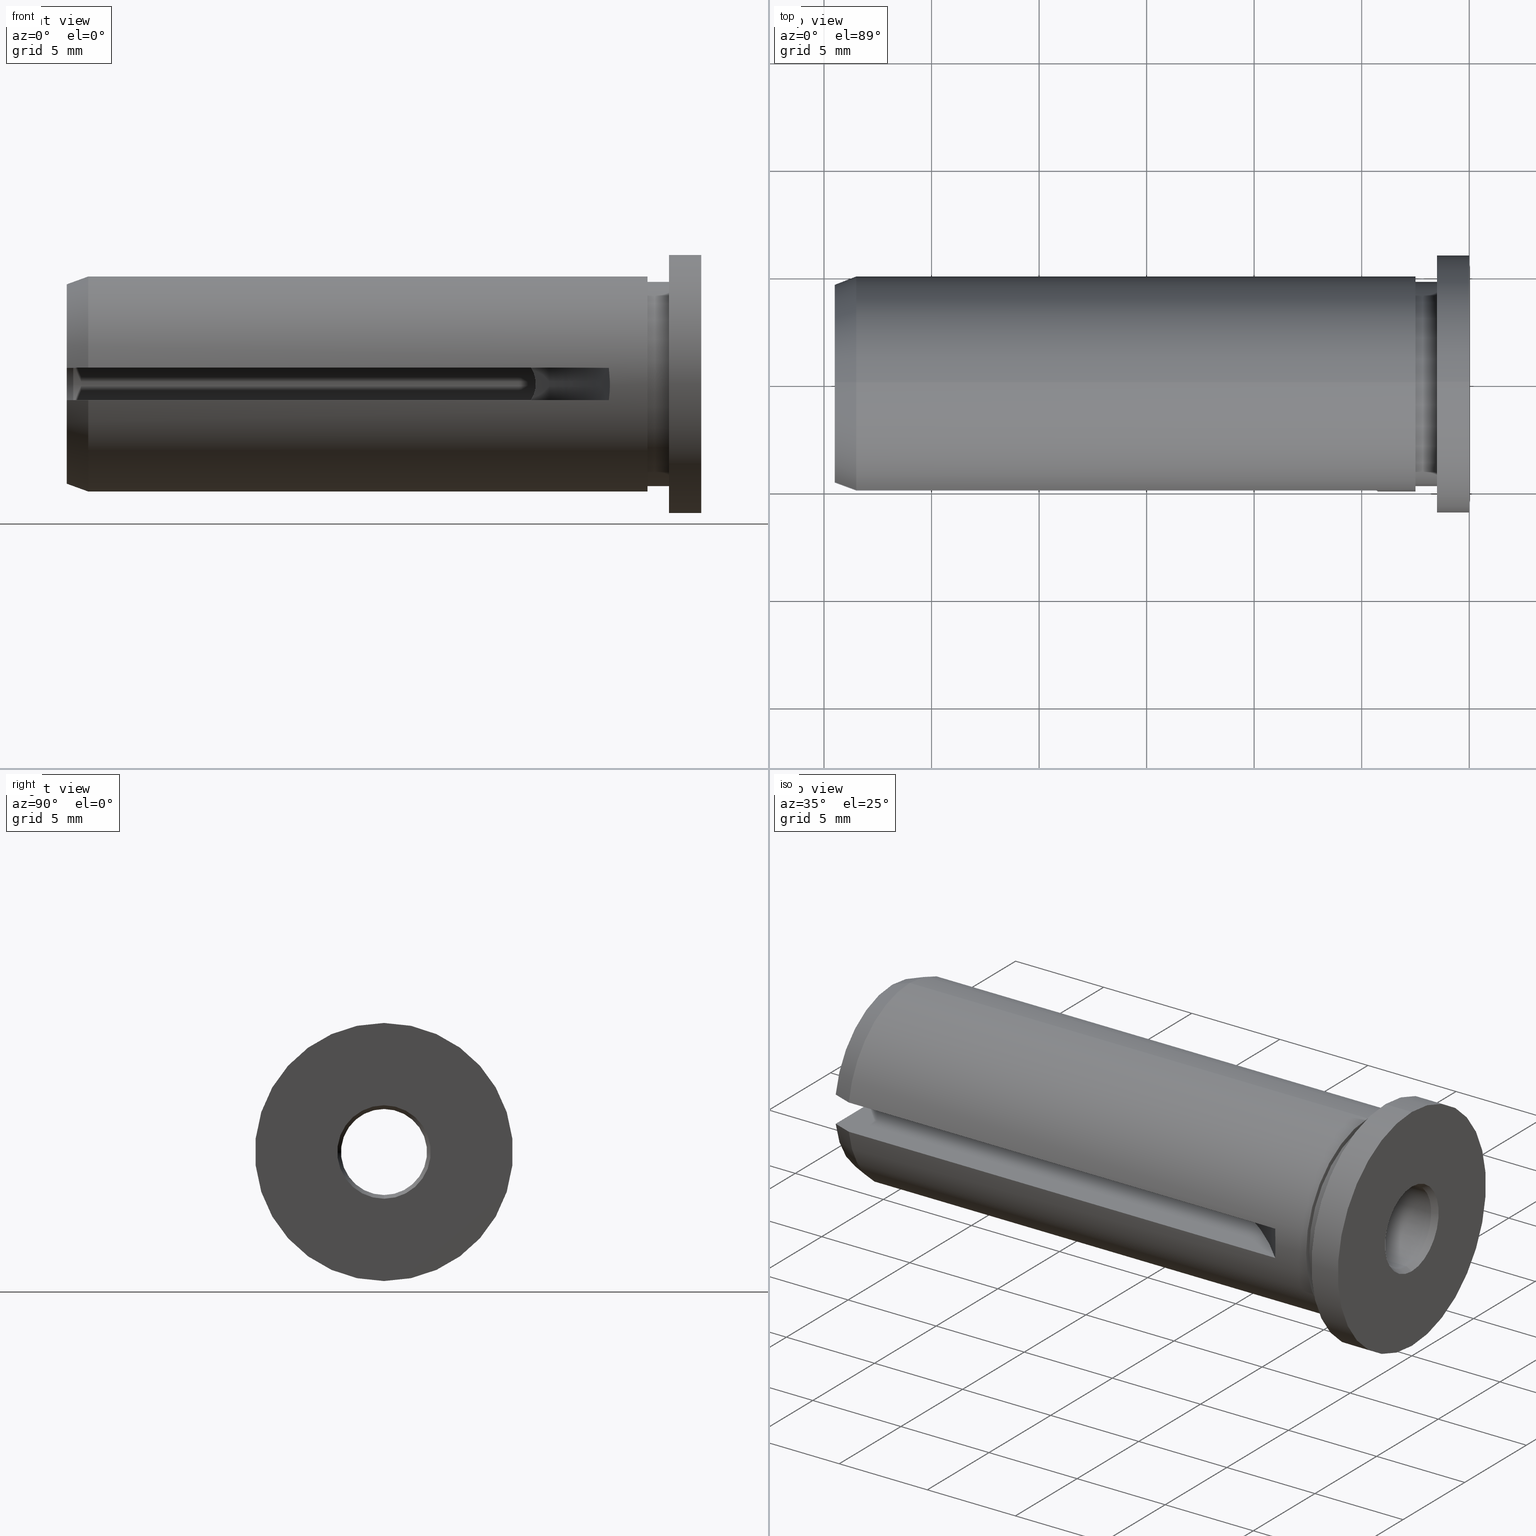
[diagram: canonical four-view strip — front | top / right | iso, engineering-drawing reading convention]
A machine part, canonical four-view strip (front | top / right | iso — engineering-drawing reading convention). The complete STEP part file that produces these views, byte-faithful:
ISO-10303-21;
HEADER;
FILE_DESCRIPTION (( 'STEP AP203' ),
    '1' );
FILE_NAME ('265.010.004.STEP',
    '2018-02-20T14:48:31',
    ( 'SWIAdmin' ),
    ( 'Hewlett-Packard Company' ),
    'SwSTEP 2.0',
    'SolidWorks 2017',
    '' );
FILE_SCHEMA (( 'CONFIG_CONTROL_DESIGN' ));
ENDSEC;

DATA;
#1 = ORIENTED_EDGE ( 'NONE', *, *, #425, .F. ) ;
#2 = CARTESIAN_POINT ( 'NONE',  ( -2.499999999999998700, 6.123233995736767300E-016, -5.000000000000000900 ) ) ;
#3 = ORIENTED_EDGE ( 'NONE', *, *, #92, .F. ) ;
#4 = CARTESIAN_POINT ( 'NONE',  ( -29.50000000000000400, 2.661408646039690100E-016, -2.173205080756889500 ) ) ;
#5 = DIRECTION ( 'NONE',  ( -1.000000000000000000, 0.0000000000000000000, -0.0000000000000000000 ) ) ;
#6 = DIRECTION ( 'NONE',  ( 0.0000000000000000000, 0.0000000000000000000, 1.000000000000000000 ) ) ;
#7 = CARTESIAN_POINT ( 'NONE',  ( -4.260835336181543200, -4.981137054215166900, -0.5014636468800564000 ) ) ;
#8 = CARTESIAN_POINT ( 'NONE',  ( -7.913416396128379700, -1.854049621773917100, 0.7500000000000000000 ) ) ;
#9 = DIRECTION ( 'NONE',  ( -1.000000000000000000, -0.0000000000000000000, -0.0000000000000000000 ) ) ;
#10 = CYLINDRICAL_SURFACE ( 'NONE', #131, 2.000000000000000000 ) ;
#11 = DIRECTION ( 'NONE',  ( -1.000000000000000000, -0.0000000000000000000, -0.0000000000000000000 ) ) ;
#12 = ORIENTED_EDGE ( 'NONE', *, *, #647, .T. ) ;
#13 = EDGE_CURVE ( 'NONE', #56, #552, #656, .T. ) ;
#14 = CARTESIAN_POINT ( 'NONE',  ( -28.50000000000000000, 0.0000000000000000000, 0.0000000000000000000 ) ) ;
#15 = DIRECTION ( 'NONE',  ( -1.000000000000000000, 0.0000000000000000000, 0.0000000000000000000 ) ) ;
#16 = PLANE ( 'NONE',  #763 ) ;
#17 = CARTESIAN_POINT ( 'NONE',  ( -28.50000000000000000, 0.0000000000000000000, 0.0000000000000000000 ) ) ;
#18 = CARTESIAN_POINT ( 'NONE',  ( -7.697445877389423400, -1.999931202562466300, -0.1361388579924962800 ) ) ;
#19 = EDGE_LOOP ( 'NONE', ( #584, #32, #466, #226 ) ) ;
#20 = EDGE_CURVE ( 'NONE', #56, #156, #599, .T. ) ;
#21 = ORIENTED_EDGE ( 'NONE', *, *, #149, .T. ) ;
#22 = LINE ( 'NONE', #422, #369 ) ;
#23 = CIRCLE ( 'NONE', #197, 20.00000000000000400 ) ;
#24 = DIRECTION ( 'NONE',  ( -1.000000000000000000, -0.0000000000000000000, -0.0000000000000000000 ) ) ;
#25 = VECTOR ( 'NONE', #577, 1000.000000000000000 ) ;
#26 = PERSON_AND_ORGANIZATION ( #576, #38 ) ;
#27 = CARTESIAN_POINT ( 'NONE',  ( -28.50000000000000000, 6.123233995736762300E-016, 4.999999999999996400 ) ) ;
#28 = ORIENTED_EDGE ( 'NONE', *, *, #164, .T. ) ;
#29 = CARTESIAN_POINT ( 'NONE',  ( -33.37338553259883200, 0.0000000000000000000, 0.0000000000000000000 ) ) ;
#30 = FACE_OUTER_BOUND ( 'NONE', #228, .T. ) ;
#31 = DIRECTION ( 'NONE',  ( -1.000000000000000000, -0.0000000000000000000, -0.0000000000000000000 ) ) ;
#32 = ORIENTED_EDGE ( 'NONE', *, *, #247, .T. ) ;
#33 = ADVANCED_FACE ( 'NONE', ( #761 ), #545, .T. ) ;
#34 = EDGE_CURVE ( 'NONE', #653, #513, #280, .T. ) ;
#35 = DIRECTION ( 'NONE',  ( 0.0000000000000000000, 0.0000000000000000000, -1.000000000000000000 ) ) ;
#36 = ORIENTED_EDGE ( 'NONE', *, *, #540, .F. ) ;
#37 = CARTESIAN_POINT ( 'NONE',  ( -29.19999999999999900, 0.0000000000000000000, 2.000000000000000000 ) ) ;
#38 = ORGANIZATION ( 'UNSPECIFIED', 'UNSPECIFIED', '' ) ;
#39 = VECTOR ( 'NONE', #382, 1000.000000000000000 ) ;
#40 = VERTEX_POINT ( 'NONE', #711 ) ;
#41 = CARTESIAN_POINT ( 'NONE',  ( -33.37338553259883200, 0.0000000000000000000, 6.000000000000000000 ) ) ;
#42 = CYLINDRICAL_SURFACE ( 'NONE', #549, 6.000000000000000000 ) ;
#43 = AXIS2_PLACEMENT_3D ( 'NONE', #698, #11, #529 ) ;
#44 = LINE ( 'NONE', #433, #630 ) ;
#45 = DIRECTION ( 'NONE',  ( 0.0000000000000000000, 0.0000000000000000000, 1.000000000000000000 ) ) ;
#46 = ORIENTED_EDGE ( 'NONE', *, *, #194, .F. ) ;
#47 = VERTEX_POINT ( 'NONE', #732 ) ;
#48 = LINE ( 'NONE', #644, #208 ) ;
#49 = EDGE_CURVE ( 'NONE', #655, #583, #134, .T. ) ;
#50 =( NAMED_UNIT ( * ) SI_UNIT ( $, .STERADIAN. ) SOLID_ANGLE_UNIT ( ) );
#51 = COORDINATED_UNIVERSAL_TIME_OFFSET ( 1, 0, .AHEAD. ) ;
#52 = CARTESIAN_POINT ( 'NONE',  ( -0.3000000000000016500, 2.555351122167198000E-016, 2.000000000000000000 ) ) ;
#53 = CARTESIAN_POINT ( 'NONE',  ( 0.0000000000000000000, 2.661408646039689100E-016, 2.173205080756889000 ) ) ;
#54 =( LENGTH_UNIT ( ) NAMED_UNIT ( * ) SI_UNIT ( .MILLI., .METRE. ) );
#55 = ORIENTED_EDGE ( 'NONE', *, *, #479, .F. ) ;
#56 = VERTEX_POINT ( 'NONE', #716 ) ;
#57 = CC_DESIGN_DATE_AND_TIME_ASSIGNMENT ( #613, #370, ( #329 ) ) ;
#58 = ADVANCED_FACE ( 'NONE', ( #285, #563 ), #260, .F. ) ;
#59 = CARTESIAN_POINT ( 'NONE',  ( -29.19999999999999900, -1.854049621773916000, -0.7500000000000000000 ) ) ;
#60 = EDGE_CURVE ( 'NONE', #513, #523, #141, .T. ) ;
#61 = DIRECTION ( 'NONE',  ( -1.000000000000000000, -0.0000000000000000000, -0.0000000000000000000 ) ) ;
#62 = CIRCLE ( 'NONE', #756, 5.000000000000000000 ) ;
#63 = ORIENTED_EDGE ( 'NONE', *, *, #243, .T. ) ;
#64 = ORIENTED_EDGE ( 'NONE', *, *, #520, .F. ) ;
#65 = PERSON_AND_ORGANIZATION_ROLE ( 'classification_officer' ) ;
#66 = FACE_OUTER_BOUND ( 'NONE', #338, .T. ) ;
#67 = CIRCLE ( 'NONE', #426, 2.000000000000000000 ) ;
#68 = CARTESIAN_POINT ( 'NONE',  ( -29.50000000000000400, 0.0000000000000000000, 0.0000000000000000000 ) ) ;
#69 = EDGE_CURVE ( 'NONE', #156, #384, #147, .T. ) ;
#70 = CARTESIAN_POINT ( 'NONE',  ( -28.50000000000000000, 0.0000000000000000000, 0.0000000000000000000 ) ) ;
#71 = ORIENTED_EDGE ( 'NONE', *, *, #127, .F. ) ;
#72 = PRODUCT_DEFINITION ( 'UNKNOWN', '', #223, #403 ) ;
#73 = ADVANCED_FACE ( 'NONE', ( #264 ), #400, .F. ) ;
#74 = DIRECTION ( 'NONE',  ( -1.000000000000000000, -0.0000000000000000000, -0.0000000000000000000 ) ) ;
#75 = EDGE_CURVE ( 'NONE', #738, #423, #267, .T. ) ;
#76 = ORIENTED_EDGE ( 'NONE', *, *, #111, .T. ) ;
#77 = DIRECTION ( 'NONE',  ( 0.0000000000000000000, 0.0000000000000000000, 1.000000000000000000 ) ) ;
#78 = CONICAL_SURFACE ( 'NONE', #349, 2.000000000000000000, 0.5235987755982999300 ) ;
#79 = FACE_OUTER_BOUND ( 'NONE', #413, .T. ) ;
#80 = DIRECTION ( 'NONE',  ( -1.000000000000000000, -0.0000000000000000000, -0.0000000000000000000 ) ) ;
#81 = DIRECTION ( 'NONE',  ( 0.0000000000000000000, 0.0000000000000000000, 1.000000000000000000 ) ) ;
#82 = EDGE_CURVE ( 'NONE', #384, #552, #694, .T. ) ;
#83 = ORIENTED_EDGE ( 'NONE', *, *, #145, .F. ) ;
#84 = DIRECTION ( 'NONE',  ( -1.000000000000000000, -0.0000000000000000000, -0.0000000000000000000 ) ) ;
#85 = DIRECTION ( 'NONE',  ( 1.000000000000000000, 0.0000000000000000000, 0.0000000000000000000 ) ) ;
#86 = ORIENTED_EDGE ( 'NONE', *, *, #164, .F. ) ;
#87 = EDGE_LOOP ( 'NONE', ( #295, #183, #580, #440, #172, #63 ) ) ;
#88 = DIRECTION ( 'NONE',  ( -1.000000000000000000, -0.0000000000000000000, -0.0000000000000000000 ) ) ;
#89 = CARTESIAN_POINT ( 'NONE',  ( -28.50000000000000000, 0.0000000000000000000, -4.999999999999996400 ) ) ;
#90 = CARTESIAN_POINT ( 'NONE',  ( -29.50000000000000400, -2.039686329568239900, -0.7500000000000000000 ) ) ;
#91 = CARTESIAN_POINT ( 'NONE',  ( -0.3000000000000016500, 0.0000000000000000000, 0.0000000000000000000 ) ) ;
#92 = EDGE_CURVE ( 'NONE', #511, #462, #745, .T. ) ;
#93 = DIRECTION ( 'NONE',  ( 0.0000000000000000000, 0.0000000000000000000, 1.000000000000000000 ) ) ;
#94 = FACE_OUTER_BOUND ( 'NONE', #342, .T. ) ;
#95 = EDGE_LOOP ( 'NONE', ( #585, #245 ) ) ;
#96 = LOCAL_TIME ( 15, 48, 31.00000000000000000, #605 ) ;
#97 = AXIS2_PLACEMENT_3D ( 'NONE', #158, #307, #616 ) ;
#98 =( NAMED_UNIT ( * ) PLANE_ANGLE_UNIT ( ) SI_UNIT ( $, .RADIAN. ) );
#99 = VECTOR ( 'NONE', #341, 999.9999999999998900 ) ;
#100 = AXIS2_PLACEMENT_3D ( 'NONE', #233, #386, #475 ) ;
#101 = CIRCLE ( 'NONE', #628, 2.000000000000000000 ) ;
#102 = DIRECTION ( 'NONE',  ( -1.000000000000000000, 0.0000000000000000000, 0.0000000000000000000 ) ) ;
#103 = ORIENTED_EDGE ( 'NONE', *, *, #75, .T. ) ;
#104 = DIRECTION ( 'NONE',  ( -1.000000000000000000, -0.0000000000000000000, -0.0000000000000000000 ) ) ;
#105 =( GEOMETRIC_REPRESENTATION_CONTEXT ( 3 ) GLOBAL_UNCERTAINTY_ASSIGNED_CONTEXT ( ( #743 ) ) GLOBAL_UNIT_ASSIGNED_CONTEXT ( ( #54, #98, #50 ) ) REPRESENTATION_CONTEXT ( 'NONE', 'WORKASPACE' ) );
#106 = CARTESIAN_POINT ( 'NONE',  ( -2.499999999999998700, 0.0000000000000000000, 0.0000000000000000000 ) ) ;
#107 = ORIENTED_EDGE ( 'NONE', *, *, #308, .T. ) ;
#108 = APPROVAL_DATE_TIME ( #306, #374 ) ;
#109 = B_SPLINE_CURVE_WITH_KNOTS ( 'NONE', 3,
 ( #313, #354, #367, #535, #18, #139, #679, #331, #646, #148 ),
 .UNSPECIFIED., .F., .F.,
 ( 4, 2, 2, 2, 4 ),
 ( 3.252606517456513300E-019, 0.0004023250316434018600, 0.0008046500632868034900, 0.001206975094930205100, 0.001609300126573607200 ),
 .UNSPECIFIED. ) ;
#110 = CARTESIAN_POINT ( 'NONE',  ( -29.19999999999999900, -1.854049621773916000, 0.7500000000000000000 ) ) ;
#111 = EDGE_CURVE ( 'NONE', #685, #256, #109, .T. ) ;
#112 = DIRECTION ( 'NONE',  ( -1.000000000000000000, -0.0000000000000000000, -0.0000000000000000000 ) ) ;
#113 = EDGE_CURVE ( 'NONE', #437, #592, #290, .T. ) ;
#114 = FACE_OUTER_BOUND ( 'NONE', #87, .T. ) ;
#115 = CARTESIAN_POINT ( 'NONE',  ( -28.50000000000000400, -4.943429983321294700, 0.7500000000000000000 ) ) ;
#116 = ORIENTED_EDGE ( 'NONE', *, *, #127, .T. ) ;
#117 = EDGE_CURVE ( 'NONE', #534, #596, #101, .T. ) ;
#118 = ADVANCED_FACE ( 'NONE', ( #268, #143 ), #399, .F. ) ;
#119 = CARTESIAN_POINT ( 'NONE',  ( 0.0000000000000000000, 0.0000000000000000000, -2.173205080756889000 ) ) ;
#120 = AXIS2_PLACEMENT_3D ( 'NONE', #578, #239, #171 ) ;
#121 = APPROVAL_DATE_TIME ( #754, #741 ) ;
#122 = CARTESIAN_POINT ( 'NONE',  ( -2.499999999999998700, 0.0000000000000000000, 5.000000000000000000 ) ) ;
#123 = FACE_OUTER_BOUND ( 'NONE', #420, .T. ) ;
#124 = PERSON_AND_ORGANIZATION_ROLE ( 'creator' ) ;
#125 = ORIENTED_EDGE ( 'NONE', *, *, #347, .T. ) ;
#126 = ORIENTED_EDGE ( 'NONE', *, *, #69, .T. ) ;
#127 = EDGE_CURVE ( 'NONE', #476, #353, #44, .T. ) ;
#128 = ORIENTED_EDGE ( 'NONE', *, *, #409, .T. ) ;
#129 = EDGE_CURVE ( 'NONE', #252, #211, #270, .T. ) ;
#130 = ORIENTED_EDGE ( 'NONE', *, *, #34, .F. ) ;
#131 = AXIS2_PLACEMENT_3D ( 'NONE', #519, #112, #81 ) ;
#132 = ORIENTED_EDGE ( 'NONE', *, *, #696, .F. ) ;
#133 = ADVANCED_FACE ( 'NONE', ( #543 ), #626, .F. ) ;
#134 = LINE ( 'NONE', #609, #25 ) ;
#135 = CIRCLE ( 'NONE', #546, 6.000000000000000000 ) ;
#136 = DIRECTION ( 'NONE',  ( -0.8660254037844377100, 6.123233995736788200E-017, -0.5000000000000017800 ) ) ;
#137 = EDGE_LOOP ( 'NONE', ( #502, #257, #220, #336, #250, #430, #55, #675 ) ) ;
#138 = AXIS2_PLACEMENT_3D ( 'NONE', #718, #80, #187 ) ;
#139 = CARTESIAN_POINT ( 'NONE',  ( -7.697245762896328900, -2.000068282858012300, 0.1341099084476960500 ) ) ;
#140 = CARTESIAN_POINT ( 'NONE',  ( -29.16670580613720500, -4.697889866643478700, -0.7500000000000000000 ) ) ;
#141 = B_SPLINE_CURVE_WITH_KNOTS ( 'NONE', 3,
 ( #115, #703, #602, #735 ),
 .UNSPECIFIED., .F., .F.,
 ( 4, 4 ),
 ( 0.006348203301518862100, 0.007413927303149411700 ),
 .UNSPECIFIED. ) ;
#142 = DIRECTION ( 'NONE',  ( -1.000000000000000000, -0.0000000000000000000, -0.0000000000000000000 ) ) ;
#143 = FACE_BOUND ( 'NONE', #95, .T. ) ;
#144 = DIRECTION ( 'NONE',  ( -1.000000000000000000, -0.0000000000000000000, -0.0000000000000000000 ) ) ;
#145 = EDGE_CURVE ( 'NONE', #591, #655, #464, .T. ) ;
#146 = ORIENTED_EDGE ( 'NONE', *, *, #687, .F. ) ;
#147 = LINE ( 'NONE', #154, #753 ) ;
#148 = CARTESIAN_POINT ( 'NONE',  ( -7.913416396128379700, -1.854049621773917100, 0.7500000000000000000 ) ) ;
#149 = EDGE_CURVE ( 'NONE', #211, #252, #651, .T. ) ;
#150 = CARTESIAN_POINT ( 'NONE',  ( -4.243564535185438300, -5.000088430392205300, -0.2485253730203543200 ) ) ;
#151 = SECURITY_CLASSIFICATION_LEVEL ( 'unclassified' ) ;
#152 = EDGE_CURVE ( 'NONE', #523, #166, #748, .T. ) ;
#153 = CARTESIAN_POINT ( 'NONE',  ( 0.0000000000000000000, 0.0000000000000000000, 0.0000000000000000000 ) ) ;
#154 = CARTESIAN_POINT ( 'NONE',  ( -0.3000000000000016500, 2.449293598294706400E-016, 2.000000000000000000 ) ) ;
#155 = EDGE_CURVE ( 'NONE', #607, #40, #375, .T. ) ;
#156 = VERTEX_POINT ( 'NONE', #52 ) ;
#157 = MECHANICAL_CONTEXT ( 'NONE', #281, 'mechanical' ) ;
#158 = CARTESIAN_POINT ( 'NONE',  ( -19.00000000000000400, -18.50000000000000000, -0.7500000000000000000 ) ) ;
#159 = LINE ( 'NONE', #176, #431 ) ;
#160 = CARTESIAN_POINT ( 'NONE',  ( -28.50000000000000400, -4.943429983321294700, -0.7500000000000000000 ) ) ;
#161 = ORIENTED_EDGE ( 'NONE', *, *, #149, .F. ) ;
#162 = EDGE_LOOP ( 'NONE', ( #190, #617 ) ) ;
#163 = CYLINDRICAL_SURFACE ( 'NONE', #216, 20.00000000000000400 ) ;
#164 = EDGE_CURVE ( 'NONE', #591, #688, #427, .T. ) ;
#165 = EDGE_LOOP ( 'NONE', ( #728, #469, #641, #230 ) ) ;
#166 = VERTEX_POINT ( 'NONE', #269 ) ;
#167 = CARTESIAN_POINT ( 'NONE',  ( -29.50000000000000400, 0.0000000000000000000, 0.0000000000000000000 ) ) ;
#168 = CARTESIAN_POINT ( 'NONE',  ( -1.500000000000001300, 0.0000000000000000000, 0.0000000000000000000 ) ) ;
#169 = EDGE_CURVE ( 'NONE', #423, #583, #229, .T. ) ;
#170 = AXIS2_PLACEMENT_3D ( 'NONE', #219, #177, #357 ) ;
#171 = DIRECTION ( 'NONE',  ( 0.0000000000000000000, 0.0000000000000000000, 1.000000000000000000 ) ) ;
#172 = ORIENTED_EDGE ( 'NONE', *, *, #275, .T. ) ;
#173 = DIRECTION ( 'NONE',  ( 0.0000000000000000000, 0.0000000000000000000, 1.000000000000000000 ) ) ;
#174 = EDGE_CURVE ( 'NONE', #166, #510, #410, .T. ) ;
#175 = ORIENTED_EDGE ( 'NONE', *, *, #247, .F. ) ;
#176 = CARTESIAN_POINT ( 'NONE',  ( -33.37338553259883200, -1.854049621773915700, 0.7500000000000000000 ) ) ;
#177 = DIRECTION ( 'NONE',  ( -1.000000000000000000, -0.0000000000000000000, -0.0000000000000000000 ) ) ;
#178 = AXIS2_PLACEMENT_3D ( 'NONE', #733, #618, #102 ) ;
#179 = CARTESIAN_POINT ( 'NONE',  ( -33.37338553259883200, -1.854049621773915700, -0.7500000000000000000 ) ) ;
#180 = ORIENTED_EDGE ( 'NONE', *, *, #347, .F. ) ;
#181 = VERTEX_POINT ( 'NONE', #627 ) ;
#182 = CARTESIAN_POINT ( 'NONE',  ( -29.19999999999999900, 0.0000000000000000000, 0.0000000000000000000 ) ) ;
#183 = ORIENTED_EDGE ( 'NONE', *, *, #647, .F. ) ;
#184 = DIRECTION ( 'NONE',  ( 0.0000000000000000000, 0.0000000000000000000, 1.000000000000000000 ) ) ;
#185 = DIRECTION ( 'NONE',  ( -1.000000000000000000, -0.0000000000000000000, -0.0000000000000000000 ) ) ;
#186 = DIRECTION ( 'NONE',  ( 0.0000000000000000000, 0.0000000000000000000, 1.000000000000000000 ) ) ;
#187 = DIRECTION ( 'NONE',  ( 0.0000000000000000000, 0.0000000000000000000, 1.000000000000000000 ) ) ;
#188 = CARTESIAN_POINT ( 'NONE',  ( -2.499999999999998700, 5.817072295949927400E-016, -4.750000000000000000 ) ) ;
#189 = AXIS2_PLACEMENT_3D ( 'NONE', #497, #225, #6 ) ;
#190 = ORIENTED_EDGE ( 'NONE', *, *, #194, .T. ) ;
#191 = APPROVAL_STATUS ( 'not_yet_approved' ) ;
#192 = LINE ( 'NONE', #566, #615 ) ;
#193 = ORIENTED_EDGE ( 'NONE', *, *, #480, .F. ) ;
#194 = EDGE_CURVE ( 'NONE', #592, #437, #356, .T. ) ;
#195 = AXIS2_PLACEMENT_3D ( 'NONE', #29, #629, #222 ) ;
#196 = AXIS2_PLACEMENT_3D ( 'NONE', #714, #631, #606 ) ;
#197 = AXIS2_PLACEMENT_3D ( 'NONE', #457, #184, #215 ) ;
#198 = CONICAL_SURFACE ( 'NONE', #676, 4.999999999999996400, 0.3490658503988667300 ) ;
#199 = LINE ( 'NONE', #332, #729 ) ;
#200 = VECTOR ( 'NONE', #526, 1000.000000000000000 ) ;
#201 = ORIENTED_EDGE ( 'NONE', *, *, #113, .F. ) ;
#202 = CARTESIAN_POINT ( 'NONE',  ( -29.50000000000000400, -4.574961419375001400, 0.7500000000000000000 ) ) ;
#203 = CARTESIAN_POINT ( 'NONE',  ( 0.0000000000000000000, 0.0000000000000000000, 6.000000000000000000 ) ) ;
#204 = EDGE_CURVE ( 'NONE', #156, #56, #512, .T. ) ;
#205 = FACE_OUTER_BOUND ( 'NONE', #569, .T. ) ;
#206 = DIRECTION ( 'NONE',  ( 1.000000000000000000, 0.0000000000000000000, 0.0000000000000000000 ) ) ;
#207 = CYLINDRICAL_SURFACE ( 'NONE', #453, 6.000000000000000000 ) ;
#208 = VECTOR ( 'NONE', #304, 1000.000000000000000 ) ;
#209 = CARTESIAN_POINT ( 'NONE',  ( -4.295598979118936200, -4.943429983321294700, -0.7500000000000000000 ) ) ;
#210 = ORIENTED_EDGE ( 'NONE', *, *, #13, .F. ) ;
#211 = VERTEX_POINT ( 'NONE', #361 ) ;
#212 = DIRECTION ( 'NONE',  ( 1.000000000000000000, 0.0000000000000000000, 0.0000000000000000000 ) ) ;
#213 = AXIS2_PLACEMENT_3D ( 'NONE', #273, #303, #278 ) ;
#214 = CARTESIAN_POINT ( 'NONE',  ( -29.50000000000000400, 0.0000000000000000000, 0.0000000000000000000 ) ) ;
#215 = DIRECTION ( 'NONE',  ( -1.000000000000000000, 0.0000000000000000000, 0.0000000000000000000 ) ) ;
#216 = AXIS2_PLACEMENT_3D ( 'NONE', #297, #287, #314 ) ;
#217 = ORIENTED_EDGE ( 'NONE', *, *, #20, .F. ) ;
#218 = CONICAL_SURFACE ( 'NONE', #189, 2.173205080756889500, 0.5235987755983009300 ) ;
#219 = CARTESIAN_POINT ( 'NONE',  ( -33.37338553259883200, 0.0000000000000000000, 0.0000000000000000000 ) ) ;
#220 = ORIENTED_EDGE ( 'NONE', *, *, #145, .T. ) ;
#221 = ORIENTED_EDGE ( 'NONE', *, *, #308, .F. ) ;
#222 = DIRECTION ( 'NONE',  ( 0.0000000000000000000, 0.0000000000000000000, 1.000000000000000000 ) ) ;
#223 = PRODUCT_DEFINITION_FORMATION_WITH_SPECIFIED_SOURCE ( 'ANY', '', #417, .NOT_KNOWN. ) ;
#224 = CARTESIAN_POINT ( 'NONE',  ( -1.500000000000000000, 6.000000000000000000, 0.0000000000000000000 ) ) ;
#225 = DIRECTION ( 'NONE',  ( -1.000000000000000000, -0.0000000000000000000, -0.0000000000000000000 ) ) ;
#226 = ORIENTED_EDGE ( 'NONE', *, *, #517, .T. ) ;
#227 = EDGE_LOOP ( 'NONE', ( #579, #132 ) ) ;
#228 = EDGE_LOOP ( 'NONE', ( #180, #760, #531, #500 ) ) ;
#229 = CIRCLE ( 'NONE', #100, 2.173205080756889500 ) ;
#230 = ORIENTED_EDGE ( 'NONE', *, *, #687, .T. ) ;
#231 = CALENDAR_DATE ( 2018, 20, 2 ) ;
#232 = CARTESIAN_POINT ( 'NONE',  ( -29.50000000000000400, 0.0000000000000000000, -4.636029765733793400 ) ) ;
#233 = CARTESIAN_POINT ( 'NONE',  ( -29.50000000000000400, 0.0000000000000000000, 0.0000000000000000000 ) ) ;
#234 = EDGE_CURVE ( 'NONE', #156, #596, #199, .T. ) ;
#235 = CARTESIAN_POINT ( 'NONE',  ( -7.913416396128379700, -1.854049621773917100, -0.7500000000000000000 ) ) ;
#236 = DIRECTION ( 'NONE',  ( 0.9396926207859082100, 4.188538737677001600E-017, 0.3420201433256695500 ) ) ;
#237 = CARTESIAN_POINT ( 'NONE',  ( -1.500000000000001300, 0.0000000000000000000, 0.0000000000000000000 ) ) ;
#238 = ORIENTED_EDGE ( 'NONE', *, *, #696, .T. ) ;
#239 = DIRECTION ( 'NONE',  ( -1.000000000000000000, -0.0000000000000000000, -0.0000000000000000000 ) ) ;
#240 = ORIENTED_EDGE ( 'NONE', *, *, #129, .T. ) ;
#241 = ORIENTED_EDGE ( 'NONE', *, *, #517, .F. ) ;
#242 = AXIS2_PLACEMENT_3D ( 'NONE', #17, #31, #707 ) ;
#243 = EDGE_CURVE ( 'NONE', #47, #534, #482, .T. ) ;
#244 = CARTESIAN_POINT ( 'NONE',  ( -0.3000000000000016500, 0.0000000000000000000, 0.0000000000000000000 ) ) ;
#245 = ORIENTED_EDGE ( 'NONE', *, *, #82, .T. ) ;
#246 = CIRCLE ( 'NONE', #749, 2.000000000000000000 ) ;
#247 = EDGE_CURVE ( 'NONE', #391, #423, #619, .T. ) ;
#248 = DIRECTION ( 'NONE',  ( -1.000000000000000000, -0.0000000000000000000, -0.0000000000000000000 ) ) ;
#249 = CARTESIAN_POINT ( 'NONE',  ( -29.19999999999999900, -1.854049621773916000, -0.7500000000000000000 ) ) ;
#250 = ORIENTED_EDGE ( 'NONE', *, *, #169, .F. ) ;
#251 = VERTEX_POINT ( 'NONE', #249 ) ;
#252 = VERTEX_POINT ( 'NONE', #188 ) ;
#253 = ORIENTED_EDGE ( 'NONE', *, *, #451, .T. ) ;
#254 = CARTESIAN_POINT ( 'NONE',  ( -29.50000000000000400, -2.039686329568239900, -0.7500000000000000000 ) ) ;
#255 = CC_DESIGN_APPROVAL ( #374, ( #223 ) ) ;
#256 = VERTEX_POINT ( 'NONE', #8 ) ;
#257 = ORIENTED_EDGE ( 'NONE', *, *, #540, .T. ) ;
#258 = DIRECTION ( 'NONE',  ( 0.0000000000000000000, 0.0000000000000000000, 1.000000000000000000 ) ) ;
#259 = ORIENTED_EDGE ( 'NONE', *, *, #69, .F. ) ;
#260 = PLANE ( 'NONE',  #310 ) ;
#261 = APPROVAL_DATE_TIME ( #514, #575 ) ;
#262 = DIRECTION ( 'NONE',  ( 0.0000000000000000000, 0.0000000000000000000, 1.000000000000000000 ) ) ;
#263 = ORIENTED_EDGE ( 'NONE', *, *, #520, .T. ) ;
#264 = FACE_OUTER_BOUND ( 'NONE', #379, .T. ) ;
#265 = CARTESIAN_POINT ( 'NONE',  ( 0.0000000000000000000, 0.0000000000000000000, 0.0000000000000000000 ) ) ;
#266 = EDGE_CURVE ( 'NONE', #688, #353, #288, .T. ) ;
#267 = CIRCLE ( 'NONE', #491, 2.173205080756889500 ) ;
#268 = FACE_OUTER_BOUND ( 'NONE', #742, .T. ) ;
#269 = CARTESIAN_POINT ( 'NONE',  ( -29.50000000000000400, 5.900366504547251900E-016, 4.636029765733793400 ) ) ;
#270 = CIRCLE ( 'NONE', #213, 4.750000000000000000 ) ;
#271 = ORIENTED_EDGE ( 'NONE', *, *, #129, .F. ) ;
#272 = CONICAL_SURFACE ( 'NONE', #432, 4.999999999999996400, 0.3490658503988667300 ) ;
#273 = CARTESIAN_POINT ( 'NONE',  ( -2.499999999999998700, 0.0000000000000000000, 0.0000000000000000000 ) ) ;
#274 = APPROVAL_ROLE ( '' ) ;
#275 = EDGE_CURVE ( 'NONE', #523, #47, #192, .T. ) ;
#276 = ORIENTED_EDGE ( 'NONE', *, *, #445, .F. ) ;
#277 = ORIENTED_EDGE ( 'NONE', *, *, #434, .F. ) ;
#278 = DIRECTION ( 'NONE',  ( 0.0000000000000000000, 0.0000000000000000000, 1.000000000000000000 ) ) ;
#279 = LINE ( 'NONE', #328, #446 ) ;
#280 = LINE ( 'NONE', #316, #368 ) ;
#281 = APPLICATION_CONTEXT ( 'configuration controlled 3d designs of mechanical parts and assemblies' ) ;
#282 = ORIENTED_EDGE ( 'NONE', *, *, #486, .T. ) ;
#283 = DIRECTION ( 'NONE',  ( 0.0000000000000000000, 0.0000000000000000000, 1.000000000000000000 ) ) ;
#284 = AXIS2_PLACEMENT_3D ( 'NONE', #293, #185, #622 ) ;
#285 = FACE_OUTER_BOUND ( 'NONE', #645, .T. ) ;
#286 = PERSON_AND_ORGANIZATION ( #576, #38 ) ;
#287 = DIRECTION ( 'NONE',  ( -0.0000000000000000000, -0.0000000000000000000, 1.000000000000000000 ) ) ;
#288 = CIRCLE ( 'NONE', #589, 4.999999999999996400 ) ;
#289 = CARTESIAN_POINT ( 'NONE',  ( -19.00000000000000400, -18.50000000000000000, 0.7500000000000000000 ) ) ;
#290 = CIRCLE ( 'NONE', #373, 6.000000000000000000 ) ;
#291 = SHAPE_DEFINITION_REPRESENTATION ( #424, #389 ) ;
#292 = DIRECTION ( 'NONE',  ( -1.000000000000000000, -0.0000000000000000000, -0.0000000000000000000 ) ) ;
#293 = CARTESIAN_POINT ( 'NONE',  ( -33.37338553259883200, 0.0000000000000000000, 0.0000000000000000000 ) ) ;
#294 = ORIENTED_EDGE ( 'NONE', *, *, #117, .T. ) ;
#295 = ORIENTED_EDGE ( 'NONE', *, *, #767, .T. ) ;
#296 = ORIENTED_EDGE ( 'NONE', *, *, #701, .F. ) ;
#297 = CARTESIAN_POINT ( 'NONE',  ( -19.00000000000000400, -18.50000000000000000, -0.7500000000000000000 ) ) ;
#298 = DIRECTION ( 'NONE',  ( 0.0000000000000000000, 0.0000000000000000000, 1.000000000000000000 ) ) ;
#299 = DIRECTION ( 'NONE',  ( -1.000000000000000000, -0.0000000000000000000, -0.0000000000000000000 ) ) ;
#300 = ORIENTED_EDGE ( 'NONE', *, *, #204, .F. ) ;
#301 = DIRECTION ( 'NONE',  ( 0.0000000000000000000, 1.000000000000000000, 0.0000000000000000000 ) ) ;
#302 = CONICAL_SURFACE ( 'NONE', #603, 2.173205080756889500, 0.5235987755983009300 ) ;
#303 = DIRECTION ( 'NONE',  ( -1.000000000000000000, -0.0000000000000000000, -0.0000000000000000000 ) ) ;
#304 = DIRECTION ( 'NONE',  ( -1.000000000000000000, -0.0000000000000000000, -0.0000000000000000000 ) ) ;
#305 = CARTESIAN_POINT ( 'NONE',  ( -4.243726913101642900, -4.999910941058702800, 0.2520709310062866400 ) ) ;
#306 = DATE_AND_TIME ( #363, #396 ) ;
#307 = DIRECTION ( 'NONE',  ( -0.0000000000000000000, 0.0000000000000000000, -1.000000000000000000 ) ) ;
#308 = EDGE_CURVE ( 'NONE', #40, #252, #279, .T. ) ;
#309 = LINE ( 'NONE', #41, #39 ) ;
#310 = AXIS2_PLACEMENT_3D ( 'NONE', #538, #5, #544 ) ;
#311 = APPROVAL_PERSON_ORGANIZATION ( #588, #575, #385 ) ;
#312 = B_SPLINE_CURVE_WITH_KNOTS ( 'NONE', 3,
 ( #330, #376, #305, #150, #7, #640 ),
 .UNSPECIFIED., .F., .F.,
 ( 4, 2, 4 ),
 ( 0.0000000000000000000, 0.0007504504051938812100, 0.001500900810387762400 ),
 .UNSPECIFIED. ) ;
#313 = CARTESIAN_POINT ( 'NONE',  ( -7.913416396128379700, -1.854049621773917100, -0.7500000000000000000 ) ) ;
#314 = DIRECTION ( 'NONE',  ( 1.000000000000000000, 0.0000000000000000000, 0.0000000000000000000 ) ) ;
#315 = AXIS2_PLACEMENT_3D ( 'NONE', #244, #474, #471 ) ;
#316 = CARTESIAN_POINT ( 'NONE',  ( -33.37338553259883200, -4.943429983321294700, 0.7500000000000000000 ) ) ;
#317 = AXIS2_PLACEMENT_3D ( 'NONE', #167, #61, #258 ) ;
#318 = AXIS2_PLACEMENT_3D ( 'NONE', #481, #662, #335 ) ;
#319 = EDGE_CURVE ( 'NONE', #56, #391, #48, .T. ) ;
#320 = ADVANCED_FACE ( 'NONE', ( #568 ), #207, .T. ) ;
#321 = FACE_OUTER_BOUND ( 'NONE', #664, .T. ) ;
#322 = EDGE_CURVE ( 'NONE', #552, #384, #506, .T. ) ;
#323 = AXIS2_PLACEMENT_3D ( 'NONE', #324, #88, #45 ) ;
#324 = CARTESIAN_POINT ( 'NONE',  ( -0.3000000000000016500, 0.0000000000000000000, 0.0000000000000000000 ) ) ;
#325 = CYLINDRICAL_SURFACE ( 'NONE', #120, 4.750000000000000000 ) ;
#326 = CARTESIAN_POINT ( 'NONE',  ( -29.50000000000000400, 0.0000000000000000000, 0.0000000000000000000 ) ) ;
#327 = ADVANCED_FACE ( 'NONE', ( #672 ), #272, .T. ) ;
#328 = CARTESIAN_POINT ( 'NONE',  ( -33.37338553259883200, 5.817072295949927400E-016, -4.750000000000000000 ) ) ;
#329 = SECURITY_CLASSIFICATION ( '', '', #151 ) ;
#330 = CARTESIAN_POINT ( 'NONE',  ( -4.295598979118936200, -4.943429983321294700, 0.7500000000000000000 ) ) ;
#331 = CARTESIAN_POINT ( 'NONE',  ( -7.792695892615557600, -1.935024460188479200, 0.5220762314962836800 ) ) ;
#332 = CARTESIAN_POINT ( 'NONE',  ( -33.37338553259883200, 0.0000000000000000000, 2.000000000000000000 ) ) ;
#333 = CARTESIAN_POINT ( 'NONE',  ( -33.37338553259883200, 6.123233995736764300E-016, -4.999999999999998200 ) ) ;
#334 = VECTOR ( 'NONE', #144, 1000.000000000000000 ) ;
#335 = DIRECTION ( 'NONE',  ( 0.0000000000000000000, 0.0000000000000000000, 1.000000000000000000 ) ) ;
#336 = ORIENTED_EDGE ( 'NONE', *, *, #49, .T. ) ;
#337 = AXIS2_PLACEMENT_3D ( 'NONE', #415, #556, #612 ) ;
#338 = EDGE_LOOP ( 'NONE', ( #241, #524, #276, #71, #608, #64 ) ) ;
#339 = ADVANCED_FACE ( 'NONE', ( #458 ), #587, .T. ) ;
#340 = DIRECTION ( 'NONE',  ( -1.000000000000000000, -0.0000000000000000000, -0.0000000000000000000 ) ) ;
#341 = DIRECTION ( 'NONE',  ( 0.9396926207859082100, 0.0000000000000000000, -0.3420201433256695500 ) ) ;
#342 = EDGE_LOOP ( 'NONE', ( #259, #665, #581, #498 ) ) ;
#343 = CIRCLE ( 'NONE', #138, 4.636029765733793400 ) ;
#344 = CARTESIAN_POINT ( 'NONE',  ( -28.83336931173547800, -4.820704965571569500, -0.7500000000000000000 ) ) ;
#345 = ORIENTED_EDGE ( 'NONE', *, *, #174, .T. ) ;
#346 = CIRCLE ( 'NONE', #710, 6.000000000000000000 ) ;
#347 = EDGE_CURVE ( 'NONE', #596, #738, #673, .T. ) ;
#348 = ORIENTED_EDGE ( 'NONE', *, *, #445, .T. ) ;
#349 = AXIS2_PLACEMENT_3D ( 'NONE', #91, #722, #730 ) ;
#350 = PLANE ( 'NONE',  #610 ) ;
#351 = CARTESIAN_POINT ( 'NONE',  ( 0.0000000000000000000, 0.0000000000000000000, 0.0000000000000000000 ) ) ;
#352 = EDGE_LOOP ( 'NONE', ( #485, #282, #46, #402 ) ) ;
#353 = VERTEX_POINT ( 'NONE', #160 ) ;
#354 = CARTESIAN_POINT ( 'NONE',  ( -7.846938628574747600, -1.898325335147791100, -0.6405475071538619900 ) ) ;
#355 = CARTESIAN_POINT ( 'NONE',  ( -29.19999999999999900, -1.854049621773916000, 0.7500000000000000000 ) ) ;
#356 = CIRCLE ( 'NONE', #731, 6.000000000000000000 ) ;
#357 = DIRECTION ( 'NONE',  ( 0.0000000000000000000, 0.0000000000000000000, 1.000000000000000000 ) ) ;
#358 = ORIENTED_EDGE ( 'NONE', *, *, #92, .T. ) ;
#359 = DIRECTION ( 'NONE',  ( 0.0000000000000000000, 0.0000000000000000000, 1.000000000000000000 ) ) ;
#360 = VECTOR ( 'NONE', #236, 999.9999999999998900 ) ;
#361 = CARTESIAN_POINT ( 'NONE',  ( -2.499999999999998700, 0.0000000000000000000, 4.750000000000000000 ) ) ;
#362 = CARTESIAN_POINT ( 'NONE',  ( -28.50000000000000000, 0.0000000000000000000, 0.0000000000000000000 ) ) ;
#363 = CALENDAR_DATE ( 2018, 20, 2 ) ;
#364 = DIRECTION ( 'NONE',  ( -0.0000000000000000000, 0.0000000000000000000, -1.000000000000000000 ) ) ;
#365 = CARTESIAN_POINT ( 'NONE',  ( -1.500000000000001300, 0.0000000000000000000, 4.750000000000000000 ) ) ;
#366 = CARTESIAN_POINT ( 'NONE',  ( -28.50000000000000000, 0.0000000000000000000, 0.0000000000000000000 ) ) ;
#367 = CARTESIAN_POINT ( 'NONE',  ( -7.793129072448693700, -1.934730929272752100, -0.5232002068911348900 ) ) ;
#368 = VECTOR ( 'NONE', #104, 1000.000000000000000 ) ;
#369 = VECTOR ( 'NONE', #9, 1000.000000000000000 ) ;
#370 = DATE_TIME_ROLE ( 'classification_date' ) ;
#371 = DATE_AND_TIME ( #571, #691 ) ;
#372 = DIRECTION ( 'NONE',  ( 0.0000000000000000000, 0.0000000000000000000, 1.000000000000000000 ) ) ;
#373 = AXIS2_PLACEMENT_3D ( 'NONE', #237, #248, #298 ) ;
#374 = APPROVAL ( #600, 'UNSPECIFIED' ) ;
#375 = CIRCLE ( 'NONE', #574, 4.750000000000000000 ) ;
#376 = CARTESIAN_POINT ( 'NONE',  ( -4.260838589378960400, -4.981133525570544200, 0.5014869050235275500 ) ) ;
#377 = DIRECTION ( 'NONE',  ( 0.0000000000000000000, 0.0000000000000000000, 1.000000000000000000 ) ) ;
#378 = DIRECTION ( 'NONE',  ( 0.0000000000000000000, 0.0000000000000000000, 1.000000000000000000 ) ) ;
#379 = EDGE_LOOP ( 'NONE', ( #725, #126, #692, #210 ) ) ;
#380 = DIRECTION ( 'NONE',  ( -1.000000000000000000, -0.0000000000000000000, -0.0000000000000000000 ) ) ;
#381 = B_SPLINE_CURVE_WITH_KNOTS ( 'NONE', 3,
 ( #90, #528, #472, #59 ),
 .UNSPECIFIED., .F., .F.,
 ( 4, 4 ),
 ( 0.002579081834403105600, 0.002931869697979228800 ),
 .UNSPECIFIED. ) ;
#382 = DIRECTION ( 'NONE',  ( -1.000000000000000000, -0.0000000000000000000, -0.0000000000000000000 ) ) ;
#383 = APPROVAL_PERSON_ORGANIZATION ( #387, #374, #274 ) ;
#384 = VERTEX_POINT ( 'NONE', #53 ) ;
#385 = APPROVAL_ROLE ( '' ) ;
#386 = DIRECTION ( 'NONE',  ( -1.000000000000000000, -0.0000000000000000000, -0.0000000000000000000 ) ) ;
#387 = PERSON_AND_ORGANIZATION ( #576, #38 ) ;
#388 = DIRECTION ( 'NONE',  ( 0.0000000000000000000, 0.0000000000000000000, 1.000000000000000000 ) ) ;
#389 = ADVANCED_BREP_SHAPE_REPRESENTATION ( '265.010.004', ( #755, #454 ), #105 ) ;
#390 = ORIENTED_EDGE ( 'NONE', *, *, #767, .F. ) ;
#391 = VERTEX_POINT ( 'NONE', #508 ) ;
#392 = DIRECTION ( 'NONE',  ( -1.000000000000000000, -0.0000000000000000000, -0.0000000000000000000 ) ) ;
#393 = CC_DESIGN_DATE_AND_TIME_ASSIGNMENT ( #371, #611, ( #72 ) ) ;
#394 = DIRECTION ( 'NONE',  ( 0.0000000000000000000, 0.0000000000000000000, 1.000000000000000000 ) ) ;
#395 = CARTESIAN_POINT ( 'NONE',  ( -28.50000000000000000, 0.0000000000000000000, -4.999999999999996400 ) ) ;
#396 = LOCAL_TIME ( 15, 48, 31.00000000000000000, #682 ) ;
#397 = CARTESIAN_POINT ( 'NONE',  ( -1.500000000000001300, 7.347880794884119700E-016, -6.000000000000000000 ) ) ;
#398 = FACE_BOUND ( 'NONE', #227, .T. ) ;
#399 = PLANE ( 'NONE',  #726 ) ;
#400 = CONICAL_SURFACE ( 'NONE', #554, 2.000000000000000000, 0.5235987755982999300 ) ;
#401 = CARTESIAN_POINT ( 'NONE',  ( -1.500000000000001300, 0.0000000000000000000, 0.0000000000000000000 ) ) ;
#402 = ORIENTED_EDGE ( 'NONE', *, *, #648, .F. ) ;
#403 = DESIGN_CONTEXT ( 'detailed design', #550, 'design' ) ;
#404 = DIRECTION ( 'NONE',  ( 0.0000000000000000000, 0.0000000000000000000, 1.000000000000000000 ) ) ;
#405 = ORIENTED_EDGE ( 'NONE', *, *, #319, .T. ) ;
#406 = ORIENTED_EDGE ( 'NONE', *, *, #582, .T. ) ;
#407 = CARTESIAN_POINT ( 'NONE',  ( -29.50000000000000400, -2.039686329568239900, 0.7500000000000000000 ) ) ;
#408 = ADVANCED_FACE ( 'NONE', ( #459 ), #557, .T. ) ;
#409 = EDGE_CURVE ( 'NONE', #391, #251, #67, .T. ) ;
#410 = LINE ( 'NONE', #27, #360 ) ;
#411 = ORIENTED_EDGE ( 'NONE', *, *, #582, .F. ) ;
#412 = VECTOR ( 'NONE', #136, 999.9999999999998900 ) ;
#413 = EDGE_LOOP ( 'NONE', ( #175, #193, #125, #103 ) ) ;
#414 = CC_DESIGN_PERSON_AND_ORGANIZATION_ASSIGNMENT ( #286, #509, ( #223 ) ) ;
#415 = CARTESIAN_POINT ( 'NONE',  ( -29.50000000000000400, 0.0000000000000000000, 0.0000000000000000000 ) ) ;
#416 = ORIENTED_EDGE ( 'NONE', *, *, #567, .F. ) ;
#417 = PRODUCT ( '265.010.004', '265.010.004', '', ( #157 ) ) ;
#418 = ORIENTED_EDGE ( 'NONE', *, *, #548, .F. ) ;
#419 = CARTESIAN_POINT ( 'NONE',  ( 0.0000000000000000000, 0.0000000000000000000, 0.0000000000000000000 ) ) ;
#420 = EDGE_LOOP ( 'NONE', ( #277, #478, #468, #146, #130, #449, #116, #705 ) ) ;
#421 = ORIENTED_EDGE ( 'NONE', *, *, #234, .F. ) ;
#422 = CARTESIAN_POINT ( 'NONE',  ( -33.37338553259883200, 7.347880794884119700E-016, -6.000000000000000000 ) ) ;
#423 = VERTEX_POINT ( 'NONE', #441 ) ;
#424 = PRODUCT_DEFINITION_SHAPE ( 'NONE', 'NONE',  #72 ) ;
#425 = EDGE_CURVE ( 'NONE', #463, #181, #346, .T. ) ;
#426 = AXIS2_PLACEMENT_3D ( 'NONE', #182, #24, #378 ) ;
#427 = LINE ( 'NONE', #89, #99 ) ;
#428 = DIRECTION ( 'NONE',  ( 0.0000000000000000000, 0.0000000000000000000, 1.000000000000000000 ) ) ;
#429 = ADVANCED_FACE ( 'NONE', ( #30 ), #302, .F. ) ;
#430 = ORIENTED_EDGE ( 'NONE', *, *, #75, .F. ) ;
#431 = VECTOR ( 'NONE', #501, 1000.000000000000000 ) ;
#432 = AXIS2_PLACEMENT_3D ( 'NONE', #366, #206, #700 ) ;
#433 = CARTESIAN_POINT ( 'NONE',  ( -33.37338553259883200, -4.943429983321294700, -0.7500000000000000000 ) ) ;
#434 = EDGE_CURVE ( 'NONE', #462, #688, #634, .T. ) ;
#435 = APPROVAL_STATUS ( 'not_yet_approved' ) ;
#436 = DIRECTION ( 'NONE',  ( 1.000000000000000000, 0.0000000000000000000, 0.0000000000000000000 ) ) ;
#437 = VERTEX_POINT ( 'NONE', #397 ) ;
#438 = DIRECTION ( 'NONE',  ( -1.000000000000000000, -0.0000000000000000000, -0.0000000000000000000 ) ) ;
#439 = PLANE ( 'NONE',  #97 ) ;
#440 = ORIENTED_EDGE ( 'NONE', *, *, #60, .T. ) ;
#441 = CARTESIAN_POINT ( 'NONE',  ( -29.50000000000000400, 2.661408646039690100E-016, -2.173205080756889500 ) ) ;
#442 = DIRECTION ( 'NONE',  ( 0.0000000000000000000, 0.0000000000000000000, 1.000000000000000000 ) ) ;
#443 = DIRECTION ( 'NONE',  ( -1.000000000000000000, -0.0000000000000000000, -0.0000000000000000000 ) ) ;
#444 = PERSON_AND_ORGANIZATION ( #576, #38 ) ;
#445 = EDGE_CURVE ( 'NONE', #353, #655, #447, .T. ) ;
#446 = VECTOR ( 'NONE', #438, 1000.000000000000000 ) ;
#447 = B_SPLINE_CURVE_WITH_KNOTS ( 'NONE', 3,
 ( #614, #344, #140, #518 ),
 .UNSPECIFIED., .F., .F.,
 ( 4, 4 ),
 ( 0.006348203301518862100, 0.007413927303149411700 ),
 .UNSPECIFIED. ) ;
#448 = CLOSED_SHELL ( 'NONE', ( #721, #408, #327, #681, #461, #764, #632, #73, #320, #489, #118, #470, #702, #429, #133, #33, #590, #58, #339, #499, #496, #560, #638 ) ) ;
#449 = ORIENTED_EDGE ( 'NONE', *, *, #567, .T. ) ;
#450 = CYLINDRICAL_SURFACE ( 'NONE', #195, 4.999999999999998200 ) ;
#451 = EDGE_CURVE ( 'NONE', #510, #688, #495, .T. ) ;
#452 = CARTESIAN_POINT ( 'NONE',  ( -29.50000000000000400, 0.0000000000000000000, 2.173205080756889500 ) ) ;
#453 = AXIS2_PLACEMENT_3D ( 'NONE', #712, #562, #404 ) ;
#454 = AXIS2_PLACEMENT_3D ( 'NONE', #265, #173, #436 ) ;
#455 = DIRECTION ( 'NONE',  ( 0.0000000000000000000, 0.0000000000000000000, 1.000000000000000000 ) ) ;
#456 = CARTESIAN_POINT ( 'NONE',  ( 0.0000000000000000000, 2.173205080756889000, 0.0000000000000000000 ) ) ;
#457 = CARTESIAN_POINT ( 'NONE',  ( -19.00000000000000400, -18.50000000000000000, -0.7500000000000000000 ) ) ;
#458 = FACE_OUTER_BOUND ( 'NONE', #668, .T. ) ;
#459 = FACE_OUTER_BOUND ( 'NONE', #504, .T. ) ;
#460 = AXIS2_PLACEMENT_3D ( 'NONE', #326, #541, #377 ) ;
#461 = ADVANCED_FACE ( 'NONE', ( #547 ), #595, .F. ) ;
#462 = VERTEX_POINT ( 'NONE', #2 ) ;
#463 = VERTEX_POINT ( 'NONE', #203 ) ;
#464 = CIRCLE ( 'NONE', #337, 4.636029765733793400 ) ;
#465 = DIRECTION ( 'NONE',  ( 1.000000000000000000, 0.0000000000000000000, 0.0000000000000000000 ) ) ;
#466 = ORIENTED_EDGE ( 'NONE', *, *, #169, .T. ) ;
#467 = CARTESIAN_POINT ( 'NONE',  ( -28.50000000000000000, 6.123233995736762300E-016, 4.999999999999996400 ) ) ;
#468 = ORIENTED_EDGE ( 'NONE', *, *, #654, .T. ) ;
#469 = ORIENTED_EDGE ( 'NONE', *, *, #152, .F. ) ;
#470 = ADVANCED_FACE ( 'NONE', ( #94 ), #78, .F. ) ;
#471 = DIRECTION ( 'NONE',  ( 0.0000000000000000000, 0.0000000000000000000, 1.000000000000000000 ) ) ;
#472 = CARTESIAN_POINT ( 'NONE',  ( -29.29981981393125100, -1.916217317575418500, -0.7500000000000000000 ) ) ;
#473 = DIRECTION ( 'NONE',  ( 0.0000000000000000000, 0.0000000000000000000, 1.000000000000000000 ) ) ;
#474 = DIRECTION ( 'NONE',  ( -1.000000000000000000, -0.0000000000000000000, -0.0000000000000000000 ) ) ;
#475 = DIRECTION ( 'NONE',  ( 0.0000000000000000000, 0.0000000000000000000, 1.000000000000000000 ) ) ;
#476 = VERTEX_POINT ( 'NONE', #209 ) ;
#477 = CC_DESIGN_PERSON_AND_ORGANIZATION_ASSIGNMENT ( #444, #124, ( #72 ) ) ;
#478 = ORIENTED_EDGE ( 'NONE', *, *, #548, .T. ) ;
#479 = EDGE_CURVE ( 'NONE', #47, #738, #713, .T. ) ;
#480 = EDGE_CURVE ( 'NONE', #596, #391, #246, .T. ) ;
#481 = CARTESIAN_POINT ( 'NONE',  ( -1.500000000000001300, 0.0000000000000000000, 0.0000000000000000000 ) ) ;
#482 = B_SPLINE_CURVE_WITH_KNOTS ( 'NONE', 3,
 ( #407, #558, #766, #110 ),
 .UNSPECIFIED., .F., .F.,
 ( 4, 4 ),
 ( 0.002579081834403105600, 0.002931869697979228800 ),
 .UNSPECIFIED. ) ;
#483 = DIRECTION ( 'NONE',  ( 1.000000000000000000, 0.0000000000000000000, 0.0000000000000000000 ) ) ;
#484 = CARTESIAN_POINT ( 'NONE',  ( -29.19999999999999900, 0.0000000000000000000, 0.0000000000000000000 ) ) ;
#485 = ORIENTED_EDGE ( 'NONE', *, *, #425, .T. ) ;
#486 = EDGE_CURVE ( 'NONE', #181, #437, #22, .T. ) ;
#487 = DIRECTION ( 'NONE',  ( -0.8660254037844377100, 0.0000000000000000000, 0.5000000000000017800 ) ) ;
#488 = FACE_OUTER_BOUND ( 'NONE', #674, .T. ) ;
#489 = ADVANCED_FACE ( 'NONE', ( #321 ), #42, .T. ) ;
#490 = DIRECTION ( 'NONE',  ( 0.8660254037844381500, 6.123233995736777100E-017, 0.5000000000000008900 ) ) ;
#491 = AXIS2_PLACEMENT_3D ( 'NONE', #68, #559, #669 ) ;
#492 = CC_DESIGN_APPROVAL ( #741, ( #72 ) ) ;
#493 = DIRECTION ( 'NONE',  ( -1.000000000000000000, 0.0000000000000000000, -0.0000000000000000000 ) ) ;
#494 = ORIENTED_EDGE ( 'NONE', *, *, #266, .T. ) ;
#495 = CIRCLE ( 'NONE', #242, 4.999999999999996400 ) ;
#496 = ADVANCED_FACE ( 'NONE', ( #205 ), #163, .F. ) ;
#497 = CARTESIAN_POINT ( 'NONE',  ( -29.50000000000000400, 0.0000000000000000000, 0.0000000000000000000 ) ) ;
#498 = ORIENTED_EDGE ( 'NONE', *, *, #82, .F. ) ;
#499 = ADVANCED_FACE ( 'NONE', ( #398, #759 ), #350, .F. ) ;
#500 = ORIENTED_EDGE ( 'NONE', *, *, #479, .T. ) ;
#501 = DIRECTION ( 'NONE',  ( 1.000000000000000000, 0.0000000000000000000, 0.0000000000000000000 ) ) ;
#502 = ORIENTED_EDGE ( 'NONE', *, *, #152, .T. ) ;
#503 = CARTESIAN_POINT ( 'NONE',  ( -1.500000000000001300, 0.0000000000000000000, 6.000000000000000000 ) ) ;
#504 = EDGE_LOOP ( 'NONE', ( #358, #572, #708, #551 ) ) ;
#505 = PERSON_AND_ORGANIZATION ( #576, #38 ) ;
#506 = CIRCLE ( 'NONE', #740, 2.173205080756889000 ) ;
#507 = APPLICATION_PROTOCOL_DEFINITION ( 'international standard', 'config_control_design', 1994, #550 ) ;
#508 = CARTESIAN_POINT ( 'NONE',  ( -29.19999999999999900, 2.449293598294706400E-016, -2.000000000000000000 ) ) ;
#509 = PERSON_AND_ORGANIZATION_ROLE ( 'creator' ) ;
#510 = VERTEX_POINT ( 'NONE', #467 ) ;
#511 = VERTEX_POINT ( 'NONE', #122 ) ;
#512 = CIRCLE ( 'NONE', #323, 2.000000000000000000 ) ;
#513 = VERTEX_POINT ( 'NONE', #530 ) ;
#514 = DATE_AND_TIME ( #553, #683 ) ;
#515 = PERSON_AND_ORGANIZATION_ROLE ( 'design_supplier' ) ;
#516 = CC_DESIGN_PERSON_AND_ORGANIZATION_ASSIGNMENT ( #565, #515, ( #223 ) ) ;
#517 = EDGE_CURVE ( 'NONE', #583, #251, #381, .T. ) ;
#518 = CARTESIAN_POINT ( 'NONE',  ( -29.50000000000000400, -4.574961419375001400, -0.7500000000000000000 ) ) ;
#519 = CARTESIAN_POINT ( 'NONE',  ( -33.37338553259883200, 0.0000000000000000000, 0.0000000000000000000 ) ) ;
#520 = EDGE_CURVE ( 'NONE', #251, #685, #757, .T. ) ;
#521 = VECTOR ( 'NONE', #487, 999.9999999999998900 ) ;
#522 = APPROVAL_ROLE ( '' ) ;
#523 = VERTEX_POINT ( 'NONE', #202 ) ;
#524 = ORIENTED_EDGE ( 'NONE', *, *, #49, .F. ) ;
#525 = CARTESIAN_POINT ( 'NONE',  ( -29.50000000000000400, 0.0000000000000000000, 2.173205080756889500 ) ) ;
#526 = DIRECTION ( 'NONE',  ( -1.000000000000000000, -0.0000000000000000000, -0.0000000000000000000 ) ) ;
#527 = DIRECTION ( 'NONE',  ( 1.000000000000000000, 0.0000000000000000000, 0.0000000000000000000 ) ) ;
#528 = CARTESIAN_POINT ( 'NONE',  ( -29.39983564776698800, -1.978070842494903800, -0.7500000000000000000 ) ) ;
#529 = DIRECTION ( 'NONE',  ( 0.0000000000000000000, 0.0000000000000000000, 1.000000000000000000 ) ) ;
#530 = CARTESIAN_POINT ( 'NONE',  ( -28.50000000000000400, -4.943429983321294700, 0.7500000000000000000 ) ) ;
#531 = ORIENTED_EDGE ( 'NONE', *, *, #243, .F. ) ;
#532 = ORIENTED_EDGE ( 'NONE', *, *, #486, .F. ) ;
#533 = AXIS2_PLACEMENT_3D ( 'NONE', #684, #292, #388 ) ;
#534 = VERTEX_POINT ( 'NONE', #355 ) ;
#535 = CARTESIAN_POINT ( 'NONE',  ( -7.717418968951297300, -1.986203929737796500, -0.2681719125293928200 ) ) ;
#536 = VECTOR ( 'NONE', #620, 1000.000000000000000 ) ;
#537 = DIRECTION ( 'NONE',  ( 0.0000000000000000000, 0.0000000000000000000, -1.000000000000000000 ) ) ;
#538 = CARTESIAN_POINT ( 'NONE',  ( -2.500000000000000000, 4.750000000000000000, 0.0000000000000000000 ) ) ;
#539 = CARTESIAN_POINT ( 'NONE',  ( -4.295598979118936200, -4.943429983321294700, 0.7500000000000000000 ) ) ;
#540 = EDGE_CURVE ( 'NONE', #166, #591, #343, .T. ) ;
#541 = DIRECTION ( 'NONE',  ( -1.000000000000000000, -0.0000000000000000000, -0.0000000000000000000 ) ) ;
#542 = DIRECTION ( 'NONE',  ( 0.0000000000000000000, 0.0000000000000000000, 1.000000000000000000 ) ) ;
#543 = FACE_OUTER_BOUND ( 'NONE', #137, .T. ) ;
#544 = DIRECTION ( 'NONE',  ( -0.0000000000000000000, 0.0000000000000000000, 1.000000000000000000 ) ) ;
#545 = CONICAL_SURFACE ( 'NONE', #747, 4.999999999999996400, 0.3490658503988667300 ) ;
#546 = AXIS2_PLACEMENT_3D ( 'NONE', #153, #74, #77 ) ;
#547 = FACE_OUTER_BOUND ( 'NONE', #19, .T. ) ;
#548 = EDGE_CURVE ( 'NONE', #462, #511, #62, .T. ) ;
#549 = AXIS2_PLACEMENT_3D ( 'NONE', #660, #84, #455 ) ;
#550 = APPLICATION_CONTEXT ( 'configuration controlled 3d designs of mechanical parts and assemblies' ) ;
#551 = ORIENTED_EDGE ( 'NONE', *, *, #654, .F. ) ;
#552 = VERTEX_POINT ( 'NONE', #119 ) ;
#553 = CALENDAR_DATE ( 2018, 20, 2 ) ;
#554 = AXIS2_PLACEMENT_3D ( 'NONE', #637, #483, #724 ) ;
#555 = ORIENTED_EDGE ( 'NONE', *, *, #155, .T. ) ;
#556 = DIRECTION ( 'NONE',  ( -1.000000000000000000, -0.0000000000000000000, -0.0000000000000000000 ) ) ;
#557 = CYLINDRICAL_SURFACE ( 'NONE', #170, 4.999999999999998200 ) ;
#558 = CARTESIAN_POINT ( 'NONE',  ( -29.39983564776698800, -1.978070842494903800, 0.7500000000000000000 ) ) ;
#559 = DIRECTION ( 'NONE',  ( -1.000000000000000000, -0.0000000000000000000, -0.0000000000000000000 ) ) ;
#560 = ADVANCED_FACE ( 'NONE', ( #66 ), #439, .F. ) ;
#561 = DIRECTION ( 'NONE',  ( 0.0000000000000000000, 0.0000000000000000000, 1.000000000000000000 ) ) ;
#562 = DIRECTION ( 'NONE',  ( -1.000000000000000000, -0.0000000000000000000, -0.0000000000000000000 ) ) ;
#563 = FACE_BOUND ( 'NONE', #670, .T. ) ;
#564 = AXIS2_PLACEMENT_3D ( 'NONE', #667, #689, #283 ) ;
#565 = PERSON_AND_ORGANIZATION ( #576, #38 ) ;
#566 = CARTESIAN_POINT ( 'NONE',  ( -29.50000000000000400, 4.636029765733793400, 0.7500000000000000000 ) ) ;
#567 = EDGE_CURVE ( 'NONE', #653, #476, #312, .T. ) ;
#568 = FACE_OUTER_BOUND ( 'NONE', #352, .T. ) ;
#569 = EDGE_LOOP ( 'NONE', ( #296, #416, #12, #677 ) ) ;
#570 = EDGE_LOOP ( 'NONE', ( #555, #107, #161, #411 ) ) ;
#571 = CALENDAR_DATE ( 2018, 20, 2 ) ;
#572 = ORIENTED_EDGE ( 'NONE', *, *, #434, .T. ) ;
#573 = APPLICATION_PROTOCOL_DEFINITION ( 'international standard', 'config_control_design', 1994, #281 ) ;
#574 = AXIS2_PLACEMENT_3D ( 'NONE', #401, #443, #542 ) ;
#575 = APPROVAL ( #191, 'UNSPECIFIED' ) ;
#576 = PERSON ( 'UNSPECIFIED', 'UNSPECIFIED', 'UNSPECIFIED', ('UNSPECIFIED'), ('UNSPECIFIED'), ('UNSPECIFIED') ) ;
#577 = DIRECTION ( 'NONE',  ( 0.0000000000000000000, 1.000000000000000000, 0.0000000000000000000 ) ) ;
#578 = CARTESIAN_POINT ( 'NONE',  ( -33.37338553259883200, 0.0000000000000000000, 0.0000000000000000000 ) ) ;
#579 = ORIENTED_EDGE ( 'NONE', *, *, #155, .F. ) ;
#580 = ORIENTED_EDGE ( 'NONE', *, *, #34, .T. ) ;
#581 = ORIENTED_EDGE ( 'NONE', *, *, #13, .T. ) ;
#582 = EDGE_CURVE ( 'NONE', #607, #211, #693, .T. ) ;
#583 = VERTEX_POINT ( 'NONE', #254 ) ;
#584 = ORIENTED_EDGE ( 'NONE', *, *, #409, .F. ) ;
#585 = ORIENTED_EDGE ( 'NONE', *, *, #322, .T. ) ;
#586 = ORIENTED_EDGE ( 'NONE', *, *, #671, .F. ) ;
#587 = CYLINDRICAL_SURFACE ( 'NONE', #284, 4.750000000000000000 ) ;
#588 = PERSON_AND_ORGANIZATION ( #576, #38 ) ;
#589 = AXIS2_PLACEMENT_3D ( 'NONE', #362, #678, #372 ) ;
#590 = ADVANCED_FACE ( 'NONE', ( #123 ), #450, .T. ) ;
#591 = VERTEX_POINT ( 'NONE', #232 ) ;
#592 = VERTEX_POINT ( 'NONE', #503 ) ;
#593 = ORIENTED_EDGE ( 'NONE', *, *, #234, .T. ) ;
#594 = CC_DESIGN_SECURITY_CLASSIFICATION ( #329, ( #223 ) ) ;
#595 = CONICAL_SURFACE ( 'NONE', #317, 2.173205080756889500, 0.5235987755983009300 ) ;
#596 = VERTEX_POINT ( 'NONE', #37 ) ;
#597 = EDGE_LOOP ( 'NONE', ( #744, #300, #593, #652 ) ) ;
#598 = CALENDAR_DATE ( 2018, 20, 2 ) ;
#599 = CIRCLE ( 'NONE', #315, 2.000000000000000000 ) ;
#600 = APPROVAL_STATUS ( 'not_yet_approved' ) ;
#601 = FACE_OUTER_BOUND ( 'NONE', #570, .T. ) ;
#602 = CARTESIAN_POINT ( 'NONE',  ( -29.16670580613720500, -4.697889866643478700, 0.7500000000000000000 ) ) ;
#603 = AXIS2_PLACEMENT_3D ( 'NONE', #214, #340, #186 ) ;
#604 = CC_DESIGN_APPROVAL ( #575, ( #329 ) ) ;
#605 = COORDINATED_UNIVERSAL_TIME_OFFSET ( 1, 0, .AHEAD. ) ;
#606 = DIRECTION ( 'NONE',  ( 0.0000000000000000000, 0.0000000000000000000, -1.000000000000000000 ) ) ;
#607 = VERTEX_POINT ( 'NONE', #365 ) ;
#608 = ORIENTED_EDGE ( 'NONE', *, *, #701, .T. ) ;
#609 = CARTESIAN_POINT ( 'NONE',  ( -29.50000000000000400, 4.636029765733793400, -0.7500000000000000000 ) ) ;
#610 = AXIS2_PLACEMENT_3D ( 'NONE', #224, #212, #35 ) ;
#611 = DATE_TIME_ROLE ( 'creation_date' ) ;
#612 = DIRECTION ( 'NONE',  ( 0.0000000000000000000, 0.0000000000000000000, 1.000000000000000000 ) ) ;
#613 = DATE_AND_TIME ( #598, #96 ) ;
#614 = CARTESIAN_POINT ( 'NONE',  ( -28.50000000000000400, -4.943429983321294700, -0.7500000000000000000 ) ) ;
#615 = VECTOR ( 'NONE', #301, 1000.000000000000000 ) ;
#616 = DIRECTION ( 'NONE',  ( -1.000000000000000000, 0.0000000000000000000, 0.0000000000000000000 ) ) ;
#617 = ORIENTED_EDGE ( 'NONE', *, *, #113, .T. ) ;
#618 = DIRECTION ( 'NONE',  ( 0.0000000000000000000, 0.0000000000000000000, 1.000000000000000000 ) ) ;
#619 = LINE ( 'NONE', #4, #412 ) ;
#620 = DIRECTION ( 'NONE',  ( 0.8660254037844381500, 0.0000000000000000000, -0.5000000000000008900 ) ) ;
#621 = DIRECTION ( 'NONE',  ( -1.000000000000000000, -0.0000000000000000000, -0.0000000000000000000 ) ) ;
#622 = DIRECTION ( 'NONE',  ( 0.0000000000000000000, 0.0000000000000000000, 1.000000000000000000 ) ) ;
#623 = AXIS2_PLACEMENT_3D ( 'NONE', #709, #392, #394 ) ;
#624 = ORIENTED_EDGE ( 'NONE', *, *, #671, .T. ) ;
#625 = VECTOR ( 'NONE', #621, 1000.000000000000000 ) ;
#626 = PLANE ( 'NONE',  #196 ) ;
#627 = CARTESIAN_POINT ( 'NONE',  ( 0.0000000000000000000, 7.347880794884119700E-016, -6.000000000000000000 ) ) ;
#628 = AXIS2_PLACEMENT_3D ( 'NONE', #680, #142, #359 ) ;
#629 = DIRECTION ( 'NONE',  ( -1.000000000000000000, -0.0000000000000000000, -0.0000000000000000000 ) ) ;
#630 = VECTOR ( 'NONE', #699, 1000.000000000000000 ) ;
#631 = DIRECTION ( 'NONE',  ( 1.000000000000000000, 0.0000000000000000000, 0.0000000000000000000 ) ) ;
#632 = ADVANCED_FACE ( 'NONE', ( #488 ), #635, .F. ) ;
#633 = DIRECTION ( 'NONE',  ( -1.000000000000000000, -0.0000000000000000000, -0.0000000000000000000 ) ) ;
#634 = LINE ( 'NONE', #333, #200 ) ;
#635 = CYLINDRICAL_SURFACE ( 'NONE', #623, 2.000000000000000000 ) ;
#636 = DIRECTION ( 'NONE',  ( -1.000000000000000000, -0.0000000000000000000, -0.0000000000000000000 ) ) ;
#637 = CARTESIAN_POINT ( 'NONE',  ( -0.3000000000000016500, 0.0000000000000000000, 0.0000000000000000000 ) ) ;
#638 = ADVANCED_FACE ( 'NONE', ( #114 ), #16, .T. ) ;
#639 = CARTESIAN_POINT ( 'NONE',  ( -29.50000000000000400, -4.574961419375001400, -0.7500000000000000000 ) ) ;
#640 = CARTESIAN_POINT ( 'NONE',  ( -4.295598979118936200, -4.943429983321294700, -0.7500000000000000000 ) ) ;
#641 = ORIENTED_EDGE ( 'NONE', *, *, #60, .F. ) ;
#642 = DIRECTION ( 'NONE',  ( -1.000000000000000000, -0.0000000000000000000, -0.0000000000000000000 ) ) ;
#643 = PERSON_AND_ORGANIZATION ( #576, #38 ) ;
#644 = CARTESIAN_POINT ( 'NONE',  ( -33.37338553259883200, 2.449293598294706400E-016, -2.000000000000000000 ) ) ;
#645 = EDGE_LOOP ( 'NONE', ( #3, #418 ) ) ;
#646 = CARTESIAN_POINT ( 'NONE',  ( -7.846901991300316400, -1.898349736410370300, 0.6404871856183227400 ) ) ;
#647 = EDGE_CURVE ( 'NONE', #653, #256, #734, .T. ) ;
#648 = EDGE_CURVE ( 'NONE', #463, #592, #309, .T. ) ;
#649 = AXIS2_PLACEMENT_3D ( 'NONE', #663, #380, #93 ) ;
#650 = LOCAL_TIME ( 15, 48, 31.00000000000000000, #690 ) ;
#651 = CIRCLE ( 'NONE', #564, 4.750000000000000000 ) ;
#652 = ORIENTED_EDGE ( 'NONE', *, *, #480, .T. ) ;
#653 = VERTEX_POINT ( 'NONE', #539 ) ;
#654 = EDGE_CURVE ( 'NONE', #511, #510, #762, .T. ) ;
#655 = VERTEX_POINT ( 'NONE', #639 ) ;
#656 = LINE ( 'NONE', #752, #536 ) ;
#657 = CIRCLE ( 'NONE', #533, 4.999999999999996400 ) ;
#658 = DIRECTION ( 'NONE',  ( -0.0000000000000000000, 0.0000000000000000000, 1.000000000000000000 ) ) ;
#659 = DIRECTION ( 'NONE',  ( -1.000000000000000000, -0.0000000000000000000, -0.0000000000000000000 ) ) ;
#660 = CARTESIAN_POINT ( 'NONE',  ( -33.37338553259883200, 0.0000000000000000000, 0.0000000000000000000 ) ) ;
#661 = CARTESIAN_POINT ( 'NONE',  ( 0.0000000000000000000, 0.0000000000000000000, 0.0000000000000000000 ) ) ;
#662 = DIRECTION ( 'NONE',  ( -1.000000000000000000, -0.0000000000000000000, -0.0000000000000000000 ) ) ;
#663 = CARTESIAN_POINT ( 'NONE',  ( -2.499999999999998700, 0.0000000000000000000, 0.0000000000000000000 ) ) ;
#664 = EDGE_LOOP ( 'NONE', ( #532, #624, #737, #201 ) ) ;
#665 = ORIENTED_EDGE ( 'NONE', *, *, #204, .T. ) ;
#666 = CARTESIAN_POINT ( 'NONE',  ( -33.37338553259883200, 0.0000000000000000000, 4.999999999999998200 ) ) ;
#667 = CARTESIAN_POINT ( 'NONE',  ( -2.499999999999998700, 0.0000000000000000000, 0.0000000000000000000 ) ) ;
#668 = EDGE_LOOP ( 'NONE', ( #221, #238, #406, #271 ) ) ;
#669 = DIRECTION ( 'NONE',  ( 0.0000000000000000000, 0.0000000000000000000, 1.000000000000000000 ) ) ;
#670 = EDGE_LOOP ( 'NONE', ( #21, #240 ) ) ;
#671 = EDGE_CURVE ( 'NONE', #181, #463, #135, .T. ) ;
#672 = FACE_OUTER_BOUND ( 'NONE', #717, .T. ) ;
#673 = LINE ( 'NONE', #452, #521 ) ;
#674 = EDGE_LOOP ( 'NONE', ( #217, #405, #128, #263, #76, #390, #294, #421 ) ) ;
#675 = ORIENTED_EDGE ( 'NONE', *, *, #275, .F. ) ;
#676 = AXIS2_PLACEMENT_3D ( 'NONE', #70, #527, #537 ) ;
#677 = ORIENTED_EDGE ( 'NONE', *, *, #111, .F. ) ;
#678 = DIRECTION ( 'NONE',  ( -1.000000000000000000, -0.0000000000000000000, -0.0000000000000000000 ) ) ;
#679 = CARTESIAN_POINT ( 'NONE',  ( -7.717265110662444800, -1.986309515832772600, 0.2673158437752077300 ) ) ;
#680 = CARTESIAN_POINT ( 'NONE',  ( -29.19999999999999900, 0.0000000000000000000, 0.0000000000000000000 ) ) ;
#681 = ADVANCED_FACE ( 'NONE', ( #746 ), #198, .T. ) ;
#682 = COORDINATED_UNIVERSAL_TIME_OFFSET ( 1, 0, .AHEAD. ) ;
#683 = LOCAL_TIME ( 15, 48, 31.00000000000000000, #751 ) ;
#684 = CARTESIAN_POINT ( 'NONE',  ( -28.50000000000000000, 0.0000000000000000000, 0.0000000000000000000 ) ) ;
#685 = VERTEX_POINT ( 'NONE', #235 ) ;
#686 = CC_DESIGN_PERSON_AND_ORGANIZATION_ASSIGNMENT ( #26, #65, ( #329 ) ) ;
#687 = EDGE_CURVE ( 'NONE', #513, #510, #657, .T. ) ;
#688 = VERTEX_POINT ( 'NONE', #395 ) ;
#689 = DIRECTION ( 'NONE',  ( -1.000000000000000000, -0.0000000000000000000, -0.0000000000000000000 ) ) ;
#690 = COORDINATED_UNIVERSAL_TIME_OFFSET ( 1, 0, .AHEAD. ) ;
#691 = LOCAL_TIME ( 15, 48, 31.00000000000000000, #51 ) ;
#692 = ORIENTED_EDGE ( 'NONE', *, *, #322, .F. ) ;
#693 = LINE ( 'NONE', #727, #625 ) ;
#694 = CIRCLE ( 'NONE', #704, 2.173205080756889000 ) ;
#695 = DIRECTION ( 'NONE',  ( 0.0000000000000000000, 0.0000000000000000000, -1.000000000000000000 ) ) ;
#696 = EDGE_CURVE ( 'NONE', #40, #607, #739, .T. ) ;
#697 = VECTOR ( 'NONE', #465, 1000.000000000000000 ) ;
#698 = CARTESIAN_POINT ( 'NONE',  ( -29.50000000000000400, 0.0000000000000000000, 0.0000000000000000000 ) ) ;
#699 = DIRECTION ( 'NONE',  ( -1.000000000000000000, -0.0000000000000000000, -0.0000000000000000000 ) ) ;
#700 = DIRECTION ( 'NONE',  ( 0.0000000000000000000, 0.0000000000000000000, -1.000000000000000000 ) ) ;
#701 = EDGE_CURVE ( 'NONE', #476, #685, #23, .T. ) ;
#702 = ADVANCED_FACE ( 'NONE', ( #706 ), #10, .F. ) ;
#703 = CARTESIAN_POINT ( 'NONE',  ( -28.83336931173547800, -4.820704965571569500, 0.7500000000000000000 ) ) ;
#704 = AXIS2_PLACEMENT_3D ( 'NONE', #661, #299, #561 ) ;
#705 = ORIENTED_EDGE ( 'NONE', *, *, #266, .F. ) ;
#706 = FACE_OUTER_BOUND ( 'NONE', #597, .T. ) ;
#707 = DIRECTION ( 'NONE',  ( 0.0000000000000000000, 0.0000000000000000000, 1.000000000000000000 ) ) ;
#708 = ORIENTED_EDGE ( 'NONE', *, *, #451, .F. ) ;
#709 = CARTESIAN_POINT ( 'NONE',  ( -33.37338553259883200, 0.0000000000000000000, 0.0000000000000000000 ) ) ;
#710 = AXIS2_PLACEMENT_3D ( 'NONE', #351, #642, #473 ) ;
#711 = CARTESIAN_POINT ( 'NONE',  ( -1.500000000000001300, 5.817072295949927400E-016, -4.750000000000000000 ) ) ;
#712 = CARTESIAN_POINT ( 'NONE',  ( -33.37338553259883200, 0.0000000000000000000, 0.0000000000000000000 ) ) ;
#713 = CIRCLE ( 'NONE', #43, 2.173205080756889500 ) ;
#714 = CARTESIAN_POINT ( 'NONE',  ( -29.50000000000000400, 4.636029765733793400, 0.0000000000000000000 ) ) ;
#715 = EDGE_LOOP ( 'NONE', ( #83, #28, #494, #348 ) ) ;
#716 = CARTESIAN_POINT ( 'NONE',  ( -0.3000000000000016500, 0.0000000000000000000, -2.000000000000000000 ) ) ;
#717 = EDGE_LOOP ( 'NONE', ( #36, #345, #253, #86 ) ) ;
#718 = CARTESIAN_POINT ( 'NONE',  ( -29.50000000000000400, 0.0000000000000000000, 0.0000000000000000000 ) ) ;
#719 = DIRECTION ( 'NONE',  ( -1.000000000000000000, -0.0000000000000000000, -0.0000000000000000000 ) ) ;
#720 = DIRECTION ( 'NONE',  ( -1.000000000000000000, -0.0000000000000000000, -0.0000000000000000000 ) ) ;
#721 = ADVANCED_FACE ( 'NONE', ( #601 ), #325, .T. ) ;
#722 = DIRECTION ( 'NONE',  ( 1.000000000000000000, 0.0000000000000000000, 0.0000000000000000000 ) ) ;
#723 = CC_DESIGN_PERSON_AND_ORGANIZATION_ASSIGNMENT ( #505, #758, ( #417 ) ) ;
#724 = DIRECTION ( 'NONE',  ( 0.0000000000000000000, 0.0000000000000000000, -1.000000000000000000 ) ) ;
#725 = ORIENTED_EDGE ( 'NONE', *, *, #20, .T. ) ;
#726 = AXIS2_PLACEMENT_3D ( 'NONE', #456, #493, #658 ) ;
#727 = CARTESIAN_POINT ( 'NONE',  ( -33.37338553259883200, 0.0000000000000000000, 4.750000000000000000 ) ) ;
#728 = ORIENTED_EDGE ( 'NONE', *, *, #174, .F. ) ;
#729 = VECTOR ( 'NONE', #633, 1000.000000000000000 ) ;
#730 = DIRECTION ( 'NONE',  ( 0.0000000000000000000, 0.0000000000000000000, -1.000000000000000000 ) ) ;
#731 = AXIS2_PLACEMENT_3D ( 'NONE', #168, #659, #442 ) ;
#732 = CARTESIAN_POINT ( 'NONE',  ( -29.50000000000000400, -2.039686329568239900, 0.7500000000000000000 ) ) ;
#733 = CARTESIAN_POINT ( 'NONE',  ( -19.00000000000000400, -18.50000000000000000, 0.7500000000000000000 ) ) ;
#734 = CIRCLE ( 'NONE', #178, 20.00000000000000400 ) ;
#735 = CARTESIAN_POINT ( 'NONE',  ( -29.50000000000000400, -4.574961419375001400, 0.7500000000000000000 ) ) ;
#736 = DIRECTION ( 'NONE',  ( 0.0000000000000000000, 0.0000000000000000000, 1.000000000000000000 ) ) ;
#737 = ORIENTED_EDGE ( 'NONE', *, *, #648, .T. ) ;
#738 = VERTEX_POINT ( 'NONE', #525 ) ;
#739 = CIRCLE ( 'NONE', #318, 4.750000000000000000 ) ;
#740 = AXIS2_PLACEMENT_3D ( 'NONE', #419, #636, #262 ) ;
#741 = APPROVAL ( #435, 'UNSPECIFIED' ) ;
#742 = EDGE_LOOP ( 'NONE', ( #1, #586 ) ) ;
#743 = UNCERTAINTY_MEASURE_WITH_UNIT (LENGTH_MEASURE( 1.000000000000000100E-005 ), #54, 'distance_accuracy_value', 'NONE');
#744 = ORIENTED_EDGE ( 'NONE', *, *, #319, .F. ) ;
#745 = CIRCLE ( 'NONE', #649, 5.000000000000000000 ) ;
#746 = FACE_OUTER_BOUND ( 'NONE', #715, .T. ) ;
#747 = AXIS2_PLACEMENT_3D ( 'NONE', #14, #85, #695 ) ;
#748 = CIRCLE ( 'NONE', #460, 4.636029765733793400 ) ;
#749 = AXIS2_PLACEMENT_3D ( 'NONE', #484, #719, #428 ) ;
#750 = PRODUCT_RELATED_PRODUCT_CATEGORY ( 'detail', '', ( #417 ) ) ;
#751 = COORDINATED_UNIVERSAL_TIME_OFFSET ( 1, 0, .AHEAD. ) ;
#752 = CARTESIAN_POINT ( 'NONE',  ( -0.3000000000000016500, 0.0000000000000000000, -2.000000000000000000 ) ) ;
#753 = VECTOR ( 'NONE', #490, 1000.000000000000000 ) ;
#754 = DATE_AND_TIME ( #231, #650 ) ;
#755 = MANIFOLD_SOLID_BREP ( 'Schnitt-Linear austragen1', #448 ) ;
#756 = AXIS2_PLACEMENT_3D ( 'NONE', #106, #720, #736 ) ;
#757 = LINE ( 'NONE', #179, #697 ) ;
#758 = PERSON_AND_ORGANIZATION_ROLE ( 'design_owner' ) ;
#759 = FACE_OUTER_BOUND ( 'NONE', #162, .T. ) ;
#760 = ORIENTED_EDGE ( 'NONE', *, *, #117, .F. ) ;
#761 = FACE_OUTER_BOUND ( 'NONE', #165, .T. ) ;
#762 = LINE ( 'NONE', #666, #334 ) ;
#763 = AXIS2_PLACEMENT_3D ( 'NONE', #289, #364, #15 ) ;
#764 = ADVANCED_FACE ( 'NONE', ( #79 ), #218, .F. ) ;
#765 = APPROVAL_PERSON_ORGANIZATION ( #643, #741, #522 ) ;
#766 = CARTESIAN_POINT ( 'NONE',  ( -29.29981981393125100, -1.916217317575418500, 0.7500000000000000000 ) ) ;
#767 = EDGE_CURVE ( 'NONE', #534, #256, #159, .T. ) ;
ENDSEC;
END-ISO-10303-21;
